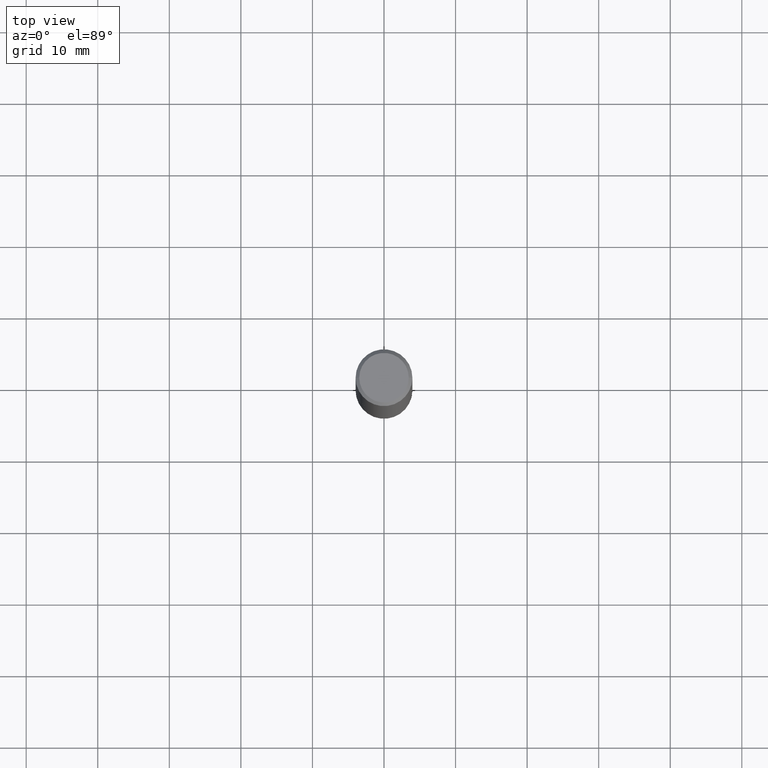
[diagram: clean part render]
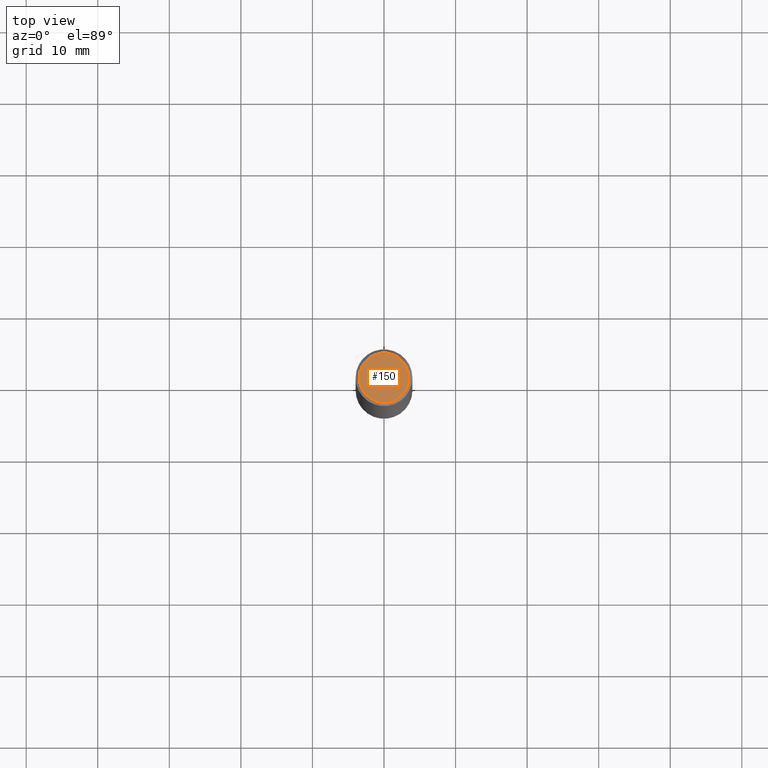
[diagram: same view with one face highlighted and labeled with its STEP entity id]
A machine part, top view. The second image highlights one B-rep face of the part: STEP entity #150.
In plain terms, the highlighted planar face has unit normal (0, -0, -1).
Its self-contained STEP definition (entity closure, byte-faithful):
#12 = AXIS2_PLACEMENT_3D ( 'NONE', #43, #97, #222 ) ;
#24 = EDGE_CURVE ( 'NONE', #290, #345, #389, .T. ) ;
#43 = CARTESIAN_POINT ( 'NONE',  ( 0.000000000000000000, 0.000000000000000000, 0.000000000000000000 ) ) ;
#97 = DIRECTION ( 'NONE',  ( -2.445468806185136597E-29, 3.491481338843145583E-15, 1.000000000000000000 ) ) ;
#113 = ORIENTED_EDGE ( 'NONE', *, *, #261, .T. ) ;
#143 = CARTESIAN_POINT ( 'NONE',  ( 9.514286648347515911E-16, 0.1362499999999997047, -4.757143324173775705E-16 ) ) ;
#150 = ADVANCED_FACE ( 'NONE', ( #321 ), #234, .F. ) ;
#171 = DIRECTION ( 'NONE',  ( 2.438088387897960049E-29, -3.491481338843145188E-15, -1.000000000000000000 ) ) ;
#183 = CARTESIAN_POINT ( 'NONE',  ( -0.1362499999999997047, 9.863434782231830429E-16, -6.775751096333125871E-30 ) ) ;
#215 = DIRECTION ( 'NONE',  ( 1.000000000000000000, -6.982962677686266711E-15, 4.876176775795936353E-29 ) ) ;
#218 = DIRECTION ( 'NONE',  ( -2.445468806185136597E-29, 3.491481338843145583E-15, 1.000000000000000000 ) ) ;
#222 = DIRECTION ( 'NONE',  ( 1.000000000000000000, -6.982962677686266711E-15, 4.876176775795936353E-29 ) ) ;
#226 = ORIENTED_EDGE ( 'NONE', *, *, #24, .T. ) ;
#227 = DIRECTION ( 'NONE',  ( -1.000000000000000000, 6.982962677686265922E-15, -4.876176775795935793E-29 ) ) ;
#234 = PLANE ( 'NONE',  #241 ) ;
#236 = CIRCLE ( 'NONE', #272, 0.1362499999999997047 ) ;
#241 = AXIS2_PLACEMENT_3D ( 'NONE', #143, #171, #227 ) ;
#261 = EDGE_CURVE ( 'NONE', #345, #290, #236, .T. ) ;
#272 = AXIS2_PLACEMENT_3D ( 'NONE', #330, #218, #215 ) ;
#290 = VERTEX_POINT ( 'NONE', #368 ) ;
#321 = FACE_OUTER_BOUND ( 'NONE', #328, .T. ) ;
#328 = EDGE_LOOP ( 'NONE', ( #113, #226 ) ) ;
#330 = CARTESIAN_POINT ( 'NONE',  ( 0.000000000000000000, 0.000000000000000000, 0.000000000000000000 ) ) ;
#345 = VERTEX_POINT ( 'NONE', #183 ) ;
#368 = CARTESIAN_POINT ( 'NONE',  ( 0.1362499999999997047, -1.038262645562515955E-15, 6.957025900226681062E-30 ) ) ;
#389 = CIRCLE ( 'NONE', #12, 0.1362499999999997047 ) ;